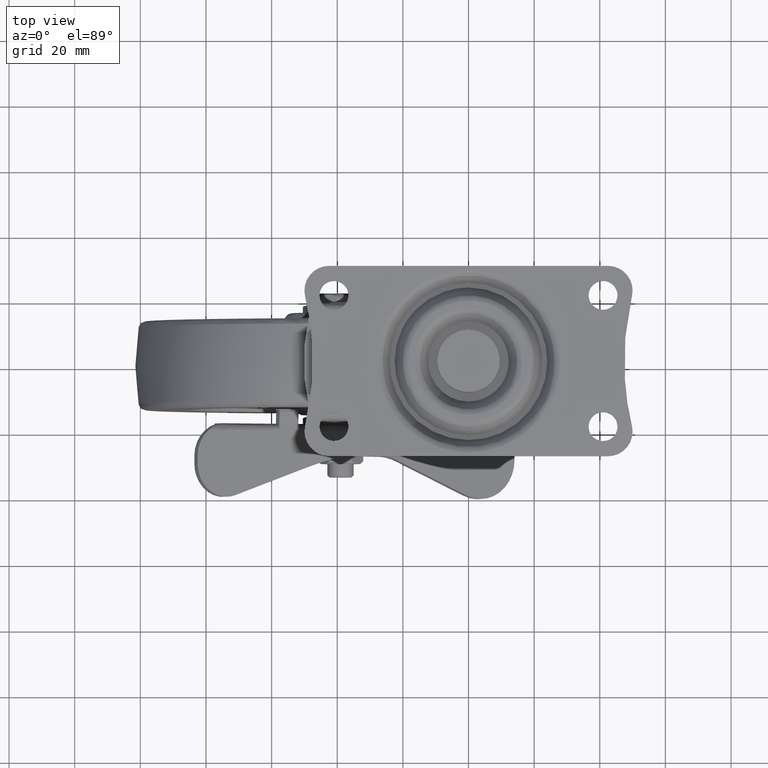
[diagram: clean part render]
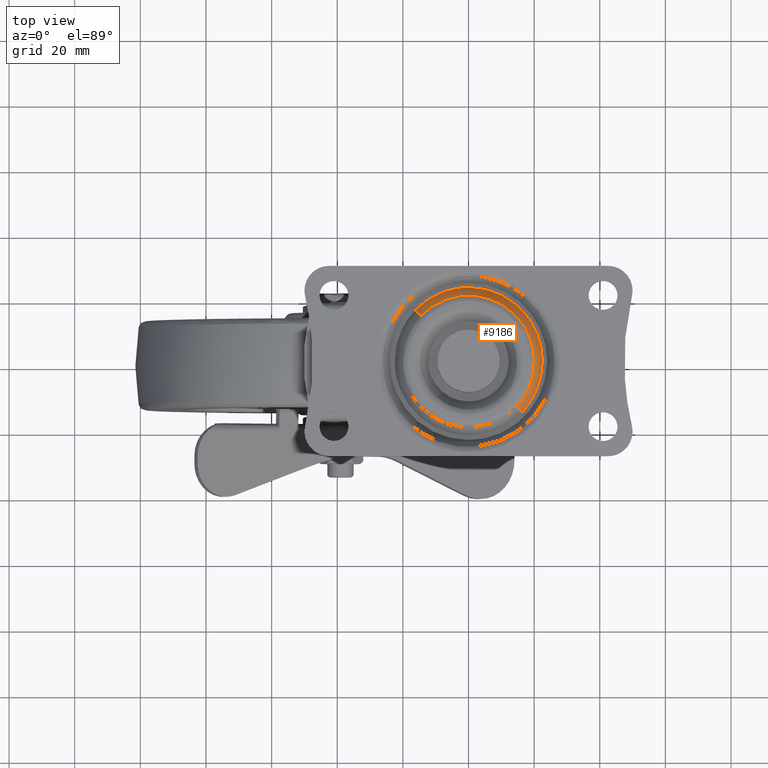
[diagram: same view with one face highlighted and labeled with its STEP entity id]
A machine part, top view. The second image highlights one B-rep face of the part: STEP entity #9186.
In plain terms, the highlighted face is a freeform B-spline surface patch.
Its self-contained STEP definition (entity closure, byte-faithful):
#8817=CARTESIAN_POINT('',(17.343373433234920,10.110300383043510,1.000000002691426));
#8818=VERTEX_POINT('',#8817);
#8828=CARTESIAN_POINT('',(-14.561983557789221,13.818806417426410,1.000000000519766));
#8829=VERTEX_POINT('',#8828);
#8830=CARTESIAN_POINT('',(-14.561983557789221,13.818806417426410,1.000000000519766));
#8831=CARTESIAN_POINT('',(-13.561069607213390,14.873943123631999,1.000000000603853));
#8832=CARTESIAN_POINT('',(-11.700520196598941,16.449741201304018,1.000000000754921));
#8833=CARTESIAN_POINT('',(-8.750885961408017,18.145590844423591,1.000000000983454));
#8834=CARTESIAN_POINT('',(-5.768107839658944,19.326391835516411,1.000000001207306));
#8835=CARTESIAN_POINT('',(-2.815610335228160,19.956541894282122,1.000000001421524));
#8836=CARTESIAN_POINT('',(0.383904967827561,20.142766157503850,1.000000001646906));
#8837=CARTESIAN_POINT('',(3.292559975224268,19.889851112273789,1.000000001846053));
#8838=CARTESIAN_POINT('',(6.781009013084045,19.013657869808799,1.000000002077074));
#8839=CARTESIAN_POINT('',(10.242821379485910,17.437698074960451,1.000000002296726));
#8840=CARTESIAN_POINT('',(14.159126213525640,14.538140743471200,1.000000002529981));
#8841=CARTESIAN_POINT('',(16.318810508853058,11.869960161037049,1.000000002644032));
#8842=CARTESIAN_POINT('',(17.343373433234920,10.110300383043510,1.000000002691426));
#8843=B_SPLINE_CURVE_WITH_KNOTS('',3,(#8830,#8831,#8832,#8833,#8834,#8835,#8836,#8837,#8838,#8839,#8840,#8841,#8842),.UNSPECIFIED.,.F.,.U.,(4,1,1,1,1,1,1,1,1,1,4),(0.000000101937950,4.363018402069976,7.271731727135471,10.180473046138561,13.961834307918799,16.288810224445449,19.779134697202199,22.687832710622040,27.050932921721110,31.123144400228380,37.231394843309822),.UNSPECIFIED.);
#8844=EDGE_CURVE('',#8829,#8818,#8843,.T.);
#8905=CARTESIAN_POINT('',(14.561983557789221,-13.818806417426440,1.000000000519772));
#8906=VERTEX_POINT('',#8905);
#8923=CARTESIAN_POINT('',(20.075128292053300,-1.421085E-014,1.0));
#8924=VERTEX_POINT('',#8923);
#8925=CARTESIAN_POINT('',(20.075128292053300,-1.421085E-014,1.0));
#8926=CARTESIAN_POINT('',(20.075280094825061,-1.349504407533965,1.000000000014659));
#8927=CARTESIAN_POINT('',(19.826086881106860,-3.810321325176859,1.000000000058110));
#8928=CARTESIAN_POINT('',(18.908659595971880,-6.944703163843455,1.000000000153679));
#8929=CARTESIAN_POINT('',(17.360693456352440,-10.346661271758119,1.000000000294425));
#8930=CARTESIAN_POINT('',(15.819353839614759,-12.494831574934951,1.000000000421094));
#8931=CARTESIAN_POINT('',(14.561983557789221,-13.818806417426440,1.000000000519772));
#8932=B_SPLINE_CURVE_WITH_KNOTS('',3,(#8925,#8926,#8927,#8928,#8929,#8930,#8931),.UNSPECIFIED.,.F.,.U.,(4,1,1,1,4),(0.000000049276201,4.048522990460427,7.382626789072419,9.764061966707814,15.241492625144430),.UNSPECIFIED.);
#8933=EDGE_CURVE('',#8924,#8906,#8932,.T.);
#8935=CARTESIAN_POINT('',(17.343373433234920,10.110300383043510,1.000000002691426));
#8936=CARTESIAN_POINT('',(18.121767362074308,8.775512423950275,1.000000002308090));
#8937=CARTESIAN_POINT('',(19.546358049018121,5.517941895302196,1.000000001404419));
#8938=CARTESIAN_POINT('',(20.075957709779349,1.986730710391729,1.000000000492840));
#8939=CARTESIAN_POINT('',(20.075128292053300,-1.421085E-014,1.0));
#8940=B_SPLINE_CURVE_WITH_KNOTS('',3,(#8935,#8936,#8937,#8938,#8939),.UNSPECIFIED.,.F.,.U.,(4,1,4),(0.000000024830712,4.635521753899970,10.595433117156981),.UNSPECIFIED.);
#8941=EDGE_CURVE('',#8818,#8924,#8940,.T.);
#9108=CARTESIAN_POINT('',(-14.518010061935350,13.777077127986731,1.105000027758713));
#9109=CARTESIAN_POINT('',(-0.740932933948605,28.295087189922082,1.105000027758713));
#9110=CARTESIAN_POINT('',(13.777077127986750,14.518010061935341,1.105000027758713));
#9111=CARTESIAN_POINT('',(28.295087189922096,0.740932933948590,1.105000027758713));
#9112=CARTESIAN_POINT('',(14.518010061935350,-13.777077127986759,1.105000027758713));
#9113=CARTESIAN_POINT('',(-16.365996179922501,15.530750473737520,-3.307626025694015));
#9114=CARTESIAN_POINT('',(-0.835245706184967,31.896746653660006,-3.307626025694015));
#9115=CARTESIAN_POINT('',(15.530750473737530,16.365996179922480,-3.307626025694015));
#9116=CARTESIAN_POINT('',(31.896746653660035,0.835245706184953,-3.307626025694015));
#9117=CARTESIAN_POINT('',(16.365996179922501,-15.530750473737550,-3.307626025694015));
#9125=(BOUNDED_SURFACE()B_SPLINE_SURFACE(2,1,((#9108,#9113),(#9109,#9114),(#9110,#9115),(#9111,#9116),(#9112,#9117)),.UNSPECIFIED.,.F.,.F.,.U.)B_SPLINE_SURFACE_WITH_KNOTS((3,2,3),(2,2),(0.0,37.382173125360282,74.764346250720550),(0.0,5.095261679588179),.UNSPECIFIED.)GEOMETRIC_REPRESENTATION_ITEM()RATIONAL_B_SPLINE_SURFACE(((1.0,1.0),(0.707106781186548,0.707106781186548),(1.0,1.0),(0.707106781186548,0.707106781186548),(1.0,1.0)))REPRESENTATION_ITEM('')SURFACE());
#9126=CARTESIAN_POINT('',(-16.320922367602929,15.487977022959360,-3.200000531907828));
#9127=VERTEX_POINT('',#9126);
#9128=CARTESIAN_POINT('',(0.000004329984611,22.499999999999570,-3.200001000000045));
#9129=VERTEX_POINT('',#9128);
#9130=CARTESIAN_POINT('',(-16.320922367602929,15.487977022959360,-3.200000531907828));
#9131=CARTESIAN_POINT('',(-15.469885606284700,16.384833647597869,-3.200000556315980));
#9132=CARTESIAN_POINT('',(-13.263799079093580,18.356000927748401,-3.200000619587622));
#9133=CARTESIAN_POINT('',(-9.717726063862013,20.446033837152399,-3.200000721290731));
#9134=CARTESIAN_POINT('',(-5.135451983985228,22.079251848624420,-3.200000852712632));
#9135=CARTESIAN_POINT('',(-1.997310698178109,22.500618543444979,-3.200000942716056));
#9136=CARTESIAN_POINT('',(0.000004329984611,22.499999999999570,-3.200001000000045));
#9137=B_SPLINE_CURVE_WITH_KNOTS('',3,(#9130,#9131,#9132,#9133,#9134,#9135,#9136),.UNSPECIFIED.,.F.,.U.,(4,1,1,1,4),(0.000000038791317,3.709183661539690,8.845011385669306,12.268861749938640,18.260633422816419),.UNSPECIFIED.);
#9138=EDGE_CURVE('',#9127,#9129,#9137,.T.);
#9139=ORIENTED_EDGE('',*,*,#9138,.F.);
#9140=CARTESIAN_POINT('',(-14.561983557789221,13.818806417426410,1.000000000519766));
#9141=CARTESIAN_POINT('',(-16.320922367602929,15.487977022959360,-3.200000531907828));
#9142=QUASI_UNIFORM_CURVE('',1,(#9140,#9141),.UNSPECIFIED.,.F.,.U.);
#9143=EDGE_CURVE('',#8829,#9127,#9142,.T.);
#9144=ORIENTED_EDGE('',*,*,#9143,.F.);
#9145=ORIENTED_EDGE('',*,*,#8844,.T.);
#9146=ORIENTED_EDGE('',*,*,#8941,.T.);
#9147=ORIENTED_EDGE('',*,*,#8933,.T.);
#9148=CARTESIAN_POINT('',(16.320922367603039,-15.487977022959489,-3.200000531907881));
#9149=VERTEX_POINT('',#9148);
#9150=CARTESIAN_POINT('',(14.561983557789221,-13.818806417426440,1.000000000519772));
#9151=CARTESIAN_POINT('',(16.320922367603039,-15.487977022959489,-3.200000531907881));
#9152=QUASI_UNIFORM_CURVE('',1,(#9150,#9151),.UNSPECIFIED.,.F.,.U.);
#9153=EDGE_CURVE('',#8906,#9149,#9152,.T.);
#9154=ORIENTED_EDGE('',*,*,#9153,.T.);
#9155=CARTESIAN_POINT('',(22.500000000000000,-1.421085E-014,-3.200001000000045));
#9156=VERTEX_POINT('',#9155);
#9157=CARTESIAN_POINT('',(22.500000000000000,-1.421085E-014,-3.200001000000045));
#9158=CARTESIAN_POINT('',(22.500180227718289,-1.423550129231897,-3.200000956976178));
#9159=CARTESIAN_POINT('',(22.288152944410982,-3.647753166550937,-3.200000889754230));
#9160=CARTESIAN_POINT('',(21.494318595540971,-6.847360095082399,-3.200000793052707));
#9161=CARTESIAN_POINT('',(20.340013115671400,-9.843802078277660,-3.200000702491425));
#9162=CARTESIAN_POINT('',(18.585237319432171,-12.853163052590499,-3.200000611539718));
#9163=CARTESIAN_POINT('',(17.055858508556341,-14.713553538770050,-3.200000555313208));
#9164=CARTESIAN_POINT('',(16.320922367603039,-15.487977022959489,-3.200000531907881));
#9165=B_SPLINE_CURVE_WITH_KNOTS('',3,(#9157,#9158,#9159,#9160,#9161,#9162,#9163,#9164),.UNSPECIFIED.,.F.,.U.,(4,1,1,1,1,4),(0.000000036396628,4.270628053797895,6.672874702189596,9.875794080049168,13.879551547607250,17.082509699503689),.UNSPECIFIED.);
#9166=EDGE_CURVE('',#9156,#9149,#9165,.T.);
#9167=ORIENTED_EDGE('',*,*,#9166,.F.);
#9168=CARTESIAN_POINT('',(0.000004329984611,22.499999999999570,-3.200001000000045));
#9169=CARTESIAN_POINT('',(1.196484823647740,22.500062490826100,-3.200001000000046));
#9170=CARTESIAN_POINT('',(3.773582414959285,22.294042146823539,-3.200001000000044));
#9171=CARTESIAN_POINT('',(7.085785599829053,21.442744943746209,-3.200001000000043));
#9172=CARTESIAN_POINT('',(10.313725052029371,20.082396798755831,-3.200001000000051));
#9173=CARTESIAN_POINT('',(13.245480339928880,18.325230843771759,-3.200001000000038));
#9174=CARTESIAN_POINT('',(16.183376807630609,15.790997456840319,-3.200001000000067));
#9175=CARTESIAN_POINT('',(18.586143420262569,12.863170165930180,-3.200000999999989));
#9176=CARTESIAN_POINT('',(20.196180181628900,10.061178704099710,-3.200001000000159));
#9177=CARTESIAN_POINT('',(21.395184922843718,7.166524868246611,-3.200000999999970));
#9178=CARTESIAN_POINT('',(22.262036154566861,3.957608389489996,-3.200001000000128));
#9179=CARTESIAN_POINT('',(22.500160124159930,1.380574541986148,-3.200000999999967));
#9180=CARTESIAN_POINT('',(22.500000000000000,-1.421085E-014,-3.200001000000045));
#9181=B_SPLINE_CURVE_WITH_KNOTS('',3,(#9168,#9169,#9170,#9171,#9172,#9173,#9174,#9175,#9176,#9177,#9178,#9179,#9180),.UNSPECIFIED.,.F.,.U.,(4,1,1,1,1,1,1,1,1,1,4),(0.000000118791846,3.589473147414470,7.731302982061358,10.216388046609650,14.082074082489351,17.947655018944339,21.813285389824060,25.402878296077969,27.611826771469040,31.201419676204800,35.343136674225619),.UNSPECIFIED.);
#9182=EDGE_CURVE('',#9129,#9156,#9181,.T.);
#9183=ORIENTED_EDGE('',*,*,#9182,.F.);
#9184=EDGE_LOOP('',(#9139,#9144,#9145,#9146,#9147,#9154,#9167,#9183));
#9185=FACE_OUTER_BOUND('',#9184,.T.);
#9186=ADVANCED_FACE('',(#9185),#9125,.T.);